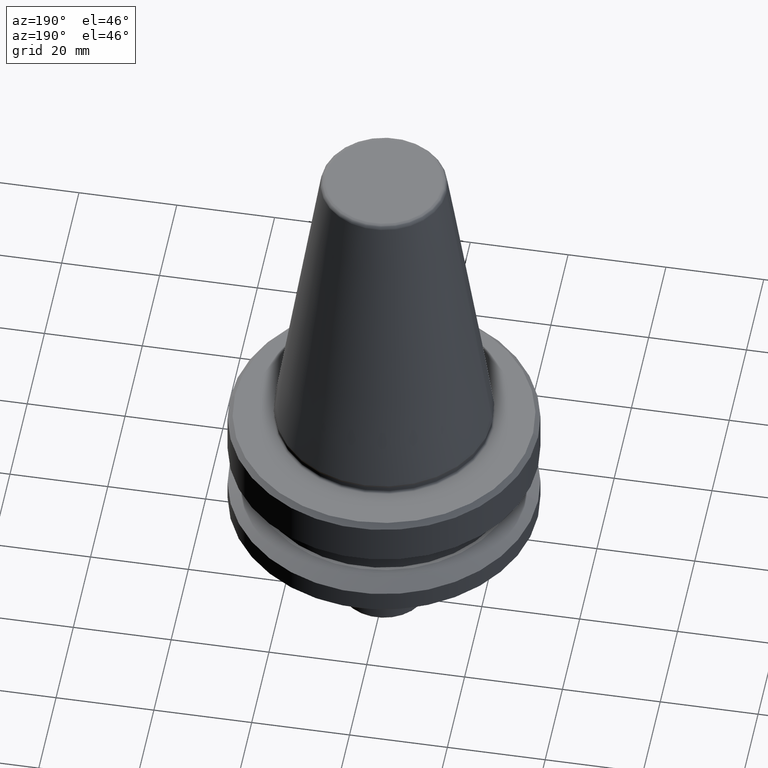
[diagram: clean part render]
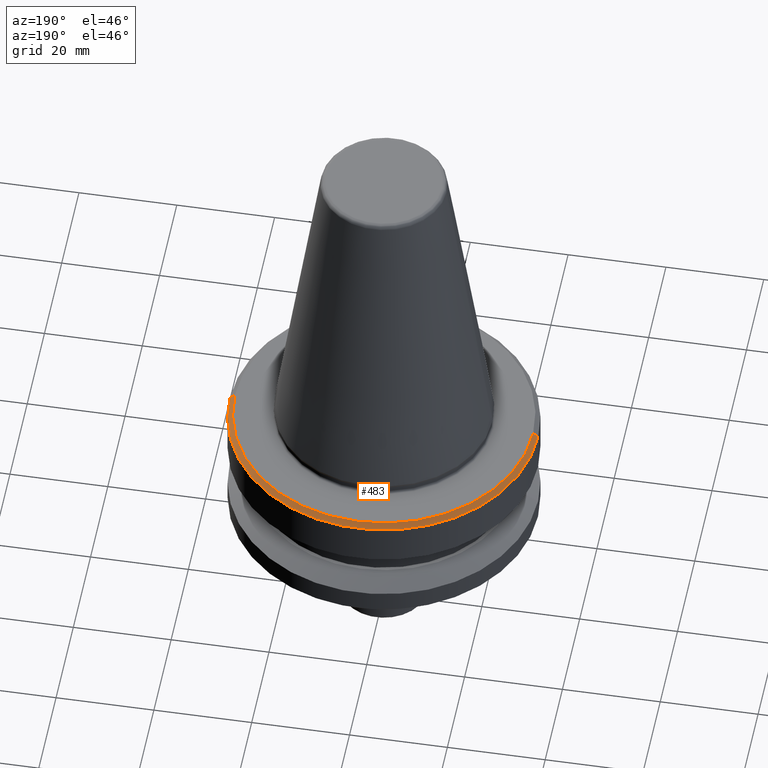
[diagram: same view with one face highlighted and labeled with its STEP entity id]
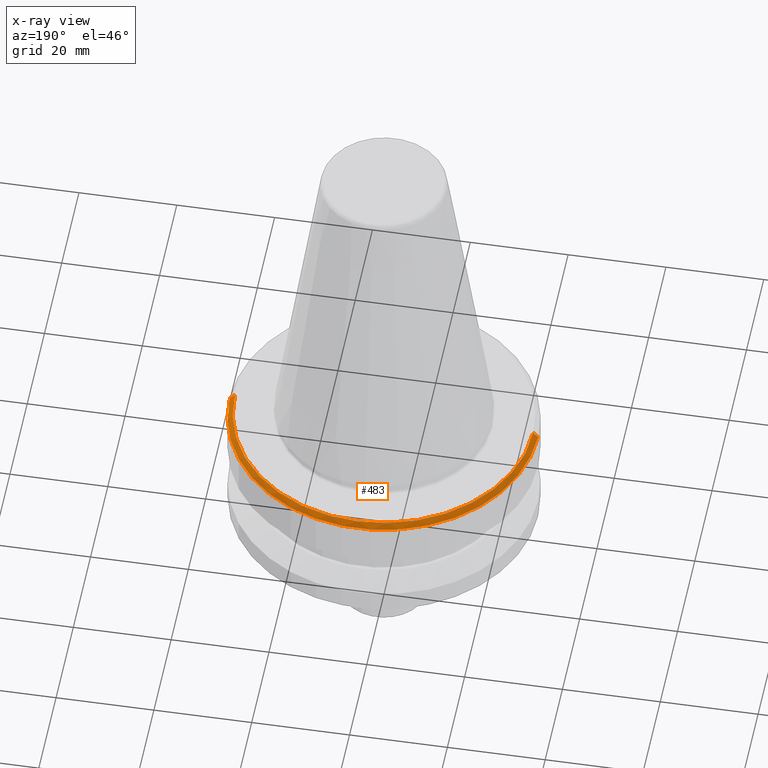
[diagram: x-ray of the same camera — body ghosted, the highlighted face saturated]
A machine part, auxiliary view. The second image highlights one B-rep face of the part: STEP entity #483.
The next image is the same camera in x-ray: the body ghosted, the highlighted face saturated — about 0% of this face is hidden behind the body in this view.
In plain terms, the highlighted conical surface has half-angle 45 deg.
Its self-contained STEP definition (entity closure, byte-faithful):
#8 = DIRECTION ( 'NONE',  ( -0.0000000000000000000, -0.0000000000000000000, 1.000000000000000000 ) ) ;
#71 = CARTESIAN_POINT ( 'NONE',  ( 30.49999999999997200, 3.735172737399423600E-015, -67.40000000000034700 ) ) ;
#147 = VERTEX_POINT ( 'NONE', #259 ) ;
#229 = CARTESIAN_POINT ( 'NONE',  ( 0.0000000000000000000, 0.0000000000000000000, -67.40000000000034700 ) ) ;
#233 = CARTESIAN_POINT ( 'NONE',  ( 0.0000000000000000000, 0.0000000000000000000, -67.40000000000034700 ) ) ;
#259 = CARTESIAN_POINT ( 'NONE',  ( -31.50000000000008500, 3.857637417314172900E-015, -68.40000000000046000 ) ) ;
#351 = CARTESIAN_POINT ( 'NONE',  ( 31.50000000000008500, 0.0000000000000000000, -68.40000000000046000 ) ) ;
#352 = EDGE_CURVE ( 'NONE', #425, #147, #684, .T. ) ;
#354 = ORIENTED_EDGE ( 'NONE', *, *, #709, .F. ) ;
#391 = EDGE_LOOP ( 'NONE', ( #354, #464, #1032, #929 ) ) ;
#399 = CARTESIAN_POINT ( 'NONE',  ( 30.49999999999997200, 3.796405077356798300E-015, -67.40000000000034700 ) ) ;
#401 = CARTESIAN_POINT ( 'NONE',  ( 0.0000000000000000000, 0.0000000000000000000, -68.40000000000046000 ) ) ;
#412 = AXIS2_PLACEMENT_3D ( 'NONE', #229, #522, #612 ) ;
#425 = VERTEX_POINT ( 'NONE', #448 ) ;
#448 = CARTESIAN_POINT ( 'NONE',  ( -30.49999999999997200, 0.0000000000000000000, -67.40000000000034700 ) ) ;
#463 = VECTOR ( 'NONE', #512, 1000.000000000000000 ) ;
#464 = ORIENTED_EDGE ( 'NONE', *, *, #605, .T. ) ;
#483 = ADVANCED_FACE ( 'NONE', ( #850 ), #621, .T. ) ;
#512 = DIRECTION ( 'NONE',  ( -0.7071067811865474600, 0.0000000000000000000, -0.7071067811865475700 ) ) ;
#522 = DIRECTION ( 'NONE',  ( 0.0000000000000000000, 0.0000000000000000000, -1.000000000000000000 ) ) ;
#572 = LINE ( 'NONE', #71, #771 ) ;
#587 = CARTESIAN_POINT ( 'NONE',  ( -30.49999999999997200, 0.0000000000000000000, -67.40000000000034700 ) ) ;
#600 = CIRCLE ( 'NONE', #889, 31.50000000000008500 ) ;
#603 = AXIS2_PLACEMENT_3D ( 'NONE', #233, #835, #1010 ) ;
#605 = EDGE_CURVE ( 'NONE', #872, #979, #572, .T. ) ;
#612 = DIRECTION ( 'NONE',  ( -1.000000000000000000, 0.0000000000000000000, 0.0000000000000000000 ) ) ;
#621 = CONICAL_SURFACE ( 'NONE', #412, 30.49999999999997200, 0.7853981633974482800 ) ;
#684 = LINE ( 'NONE', #587, #463 ) ;
#709 = EDGE_CURVE ( 'NONE', #872, #425, #880, .T. ) ;
#740 = EDGE_CURVE ( 'NONE', #979, #147, #600, .T. ) ;
#771 = VECTOR ( 'NONE', #859, 1000.000000000000000 ) ;
#835 = DIRECTION ( 'NONE',  ( -0.0000000000000000000, -0.0000000000000000000, 1.000000000000000000 ) ) ;
#850 = FACE_OUTER_BOUND ( 'NONE', #391, .T. ) ;
#859 = DIRECTION ( 'NONE',  ( 0.7071067811865474600, 8.659560562354931600E-017, -0.7071067811865475700 ) ) ;
#872 = VERTEX_POINT ( 'NONE', #399 ) ;
#880 = CIRCLE ( 'NONE', #603, 30.49999999999997200 ) ;
#889 = AXIS2_PLACEMENT_3D ( 'NONE', #401, #8, #896 ) ;
#896 = DIRECTION ( 'NONE',  ( 1.000000000000000000, 0.0000000000000000000, 0.0000000000000000000 ) ) ;
#929 = ORIENTED_EDGE ( 'NONE', *, *, #352, .F. ) ;
#979 = VERTEX_POINT ( 'NONE', #351 ) ;
#1010 = DIRECTION ( 'NONE',  ( 1.000000000000000000, 0.0000000000000000000, 0.0000000000000000000 ) ) ;
#1032 = ORIENTED_EDGE ( 'NONE', *, *, #740, .T. ) ;